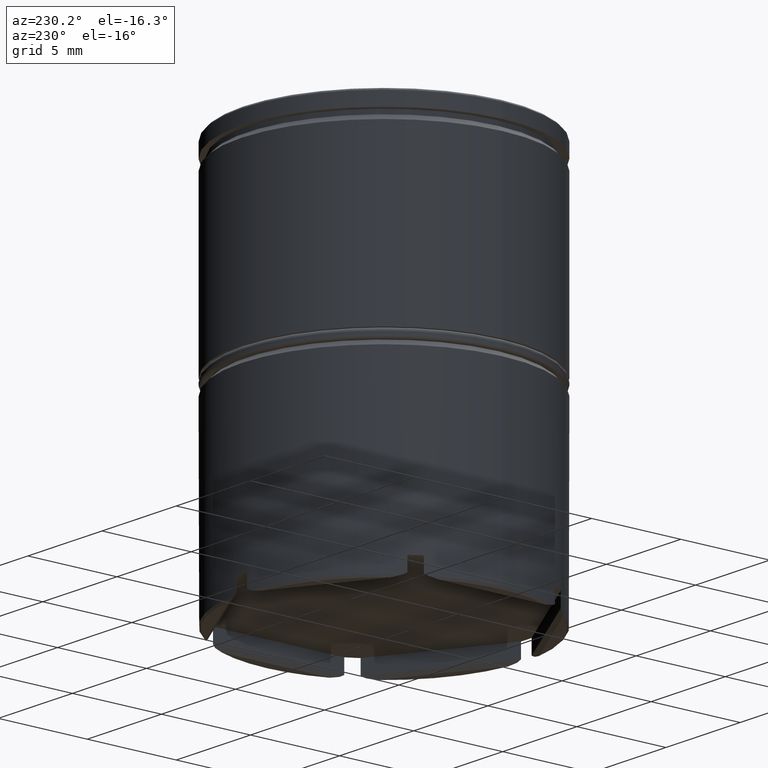
[diagram: clean part render]
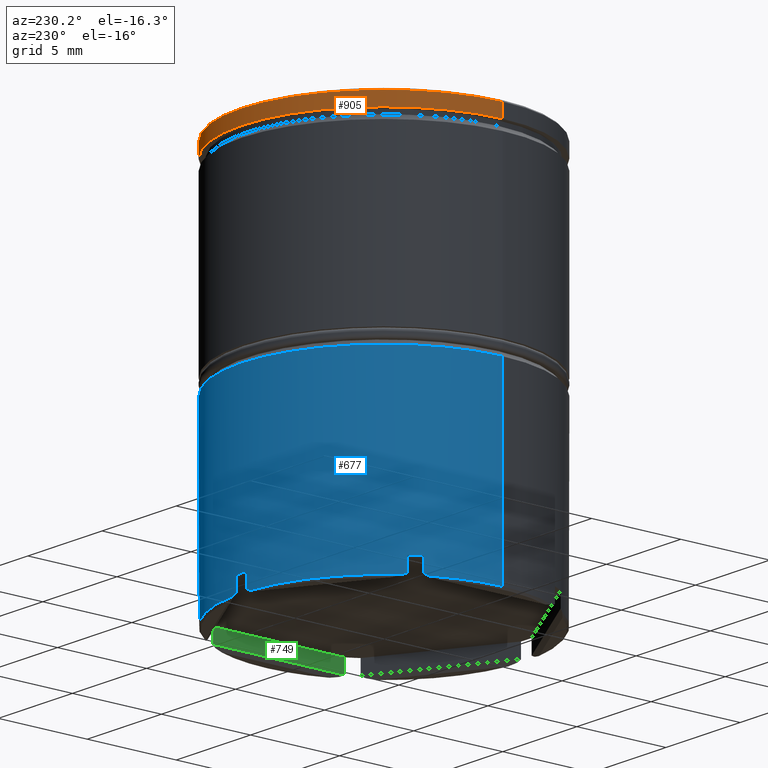
[diagram: same view with three faces highlighted in distinct colors, each labeled with its STEP entity id]
A machine part, auxiliary view with three faces highlighted in distinct colors.
Their STEP definitions:

[orange] entity #905 — the highlighted cylindrical surface (partial cylindrical patch) has radius 8 mm, axis along (-0, -0, 1).
#8 = DIRECTION ( 'NONE',  ( 1.000000000000000000, 0.000000000000000000, 0.000000000000000000 ) ) ;
#83 = DIRECTION ( 'NONE',  ( 1.000000000000000000, 0.000000000000000000, 0.000000000000000000 ) ) ;
#124 = DIRECTION ( 'NONE',  ( -0.000000000000000000, -0.000000000000000000, 1.000000000000000000 ) ) ;
#199 = VECTOR ( 'NONE', #1619, 1000.000000000000000 ) ;
#269 = AXIS2_PLACEMENT_3D ( 'NONE', #1228, #124, #8 ) ;
#275 = VERTEX_POINT ( 'NONE', #773 ) ;
#290 = AXIS2_PLACEMENT_3D ( 'NONE', #1460, #1603, #83 ) ;
#347 = EDGE_CURVE ( 'NONE', #1199, #275, #873, .T. ) ;
#361 = EDGE_CURVE ( 'NONE', #544, #275, #1565, .T. ) ;
#470 = CARTESIAN_POINT ( 'NONE',  ( 0.000000000000000000, 0.000000000000000000, -0.09999999999999592548 ) ) ;
#526 = VECTOR ( 'NONE', #569, 1000.000000000000000 ) ;
#544 = VERTEX_POINT ( 'NONE', #1384 ) ;
#569 = DIRECTION ( 'NONE',  ( -0.000000000000000000, -0.000000000000000000, 1.000000000000000000 ) ) ;
#657 = AXIS2_PLACEMENT_3D ( 'NONE', #470, #1087, #1591 ) ;
#773 = CARTESIAN_POINT ( 'NONE',  ( 8.000000000000000000, 0.000000000000000000, -0.09999999999999592548 ) ) ;
#873 = CIRCLE ( 'NONE', #657, 8.000000000000000000 ) ;
#905 = ADVANCED_FACE ( 'NONE', ( #1627 ), #1010, .T. ) ;
#973 = EDGE_CURVE ( 'NONE', #1605, #1199, #1117, .T. ) ;
#1010 = CYLINDRICAL_SURFACE ( 'NONE', #269, 8.000000000000000000 ) ;
#1073 = ORIENTED_EDGE ( 'NONE', *, *, #973, .T. ) ;
#1074 = ORIENTED_EDGE ( 'NONE', *, *, #361, .F. ) ;
#1079 = CARTESIAN_POINT ( 'NONE',  ( -8.000000000000000000, 9.797174393178825657E-16, -0.8749999999999998890 ) ) ;
#1087 = DIRECTION ( 'NONE',  ( 0.000000000000000000, 0.000000000000000000, -1.000000000000000000 ) ) ;
#1117 = LINE ( 'NONE', #1509, #199 ) ;
#1166 = EDGE_LOOP ( 'NONE', ( #1196, #1073, #1520, #1074 ) ) ;
#1196 = ORIENTED_EDGE ( 'NONE', *, *, #1205, .T. ) ;
#1199 = VERTEX_POINT ( 'NONE', #1440 ) ;
#1205 = EDGE_CURVE ( 'NONE', #544, #1605, #1285, .T. ) ;
#1228 = CARTESIAN_POINT ( 'NONE',  ( 0.000000000000000000, 0.000000000000000000, 0.000000000000000000 ) ) ;
#1285 = CIRCLE ( 'NONE', #290, 8.000000000000000000 ) ;
#1318 = CARTESIAN_POINT ( 'NONE',  ( 8.000000000000000000, 0.000000000000000000, 0.000000000000000000 ) ) ;
#1384 = CARTESIAN_POINT ( 'NONE',  ( 8.000000000000000000, 0.000000000000000000, -0.8749999999999998890 ) ) ;
#1440 = CARTESIAN_POINT ( 'NONE',  ( -8.000000000000000000, 9.797174393178825657E-16, -0.09999999999999592548 ) ) ;
#1460 = CARTESIAN_POINT ( 'NONE',  ( 0.000000000000000000, 0.000000000000000000, -0.8749999999999998890 ) ) ;
#1509 = CARTESIAN_POINT ( 'NONE',  ( -8.000000000000000000, 9.797174393178825657E-16, 0.000000000000000000 ) ) ;
#1520 = ORIENTED_EDGE ( 'NONE', *, *, #347, .T. ) ;
#1565 = LINE ( 'NONE', #1318, #526 ) ;
#1591 = DIRECTION ( 'NONE',  ( 1.000000000000000000, 0.000000000000000000, 0.000000000000000000 ) ) ;
#1603 = DIRECTION ( 'NONE',  ( -0.000000000000000000, -0.000000000000000000, 1.000000000000000000 ) ) ;
#1605 = VERTEX_POINT ( 'NONE', #1079 ) ;
#1619 = DIRECTION ( 'NONE',  ( -0.000000000000000000, -0.000000000000000000, 1.000000000000000000 ) ) ;
#1627 = FACE_OUTER_BOUND ( 'NONE', #1166, .T. ) ;

[blue] entity #677 — the highlighted cylindrical surface (partial cylindrical patch) has radius 8 mm, axis along (-0, -0, 1).
#15 = CARTESIAN_POINT ( 'NONE',  ( -0.5800662258917000935, 7.978942484664226065, -21.90000000000000213 ) ) ;
#31 = DIRECTION ( 'NONE',  ( -1.000000000000000000, 0.000000000000000000, 0.000000000000000000 ) ) ;
#33 = EDGE_CURVE ( 'NONE', #574, #1305, #1259, .T. ) ;
#34 = VERTEX_POINT ( 'NONE', #1007 ) ;
#44 = ORIENTED_EDGE ( 'NONE', *, *, #307, .T. ) ;
#59 = AXIS2_PLACEMENT_3D ( 'NONE', #1474, #1593, #830 ) ;
#72 = CARTESIAN_POINT ( 'NONE',  ( -6.742569498068907485, 4.305549507752846061, -20.99999999999999645 ) ) ;
#74 = DIRECTION ( 'NONE',  ( -0.000000000000000000, -0.000000000000000000, 1.000000000000000000 ) ) ;
#89 = AXIS2_PLACEMENT_3D ( 'NONE', #712, #74, #963 ) ;
#92 = EDGE_CURVE ( 'NONE', #798, #836, #245, .T. ) ;
#93 = CARTESIAN_POINT ( 'NONE',  ( 0.3574305019310944909, 7.992011225986190404, -20.99999999999999645 ) ) ;
#105 = EDGE_CURVE ( 'NONE', #376, #1127, #392, .T. ) ;
#108 =( BOUNDED_CURVE ( )  B_SPLINE_CURVE ( 3, ( #1141, #1242, #860, #603 ),
 .UNSPECIFIED., .F., .T. ) 
 B_SPLINE_CURVE_WITH_KNOTS ( ( 4, 4 ),
 ( 2.662687568714984465, 2.690565841793532975 ),
 .UNSPECIFIED. ) 
 CURVE ( )  GEOMETRIC_REPRESENTATION_ITEM ( )  RATIONAL_B_SPLINE_CURVE ( ( 1.000000000000000000, 0.9999352345395148278, 0.9999352345395148278, 1.000000000000000000 ) ) 
 REPRESENTATION_ITEM ( '' )  );
#125 = ORIENTED_EDGE ( 'NONE', *, *, #339, .T. ) ;
#127 = CARTESIAN_POINT ( 'NONE',  ( -0.3574305019310927700, 7.992011225986188627, -20.99999999999999645 ) ) ;
#129 = CARTESIAN_POINT ( 'NONE',  ( -6.742569498068905709, 4.305549507752851390, 0.000000000000000000 ) ) ;
#147 = CARTESIAN_POINT ( 'NONE',  ( -0.3574305019310984322, 7.992011225986190404, -21.80000000000000782 ) ) ;
#149 = DIRECTION ( 'NONE',  ( -0.000000000000000000, -0.000000000000000000, 1.000000000000000000 ) ) ;
#172 =( BOUNDED_CURVE ( )  B_SPLINE_CURVE ( 3, ( #814, #411, #559, #669 ),
 .UNSPECIFIED., .F., .T. ) 
 B_SPLINE_CURVE_WITH_KNOTS ( ( 4, 4 ),
 ( 3.592619465386055033, 3.620497738464601323 ),
 .UNSPECIFIED. ) 
 CURVE ( )  GEOMETRIC_REPRESENTATION_ITEM ( )  RATIONAL_B_SPLINE_CURVE ( ( 1.000000000000000000, 0.9999352345395148278, 0.9999352345395148278, 1.000000000000000000 ) ) 
 REPRESENTATION_ITEM ( '' )  );
#185 = CARTESIAN_POINT ( 'NONE',  ( -7.100000000000005862, 3.686461718233341678, -21.80000000000000782 ) ) ;
#192 = VERTEX_POINT ( 'NONE', #254 ) ;
#193 = AXIS2_PLACEMENT_3D ( 'NONE', #1420, #771, #556 ) ;
#194 = VECTOR ( 'NONE', #346, 1000.000000000000000 ) ;
#215 = VERTEX_POINT ( 'NONE', #369 ) ;
#223 = VERTEX_POINT ( 'NONE', #1240 ) ;
#234 = DIRECTION ( 'NONE',  ( -0.000000000000000000, -0.000000000000000000, 1.000000000000000000 ) ) ;
#245 = CIRCLE ( 'NONE', #1371, 8.000000000000000000 ) ;
#254 = CARTESIAN_POINT ( 'NONE',  ( -0.5800662258917000935, 7.978942484664226065, -21.90000000000000213 ) ) ;
#256 = CARTESIAN_POINT ( 'NONE',  ( -6.742569498068905709, 4.305549507752851390, -21.80000000000000782 ) ) ;
#263 = EDGE_CURVE ( 'NONE', #861, #1011, #1210, .T. ) ;
#278 = CARTESIAN_POINT ( 'NONE',  ( -7.200000000000001066, 3.487119154832536871, -21.90000000000000213 ) ) ;
#297 = ORIENTED_EDGE ( 'NONE', *, *, #1372, .T. ) ;
#307 = EDGE_CURVE ( 'NONE', #721, #1098, #1375, .T. ) ;
#333 = ORIENTED_EDGE ( 'NONE', *, *, #964, .F. ) ;
#339 = EDGE_CURVE ( 'NONE', #1098, #1118, #1342, .T. ) ;
#340 = EDGE_LOOP ( 'NONE', ( #125, #684, #342, #467, #1529, #344, #1250, #636, #1477, #934, #404, #297, #333, #440, #1553, #1602, #1084, #1150, #977, #1466, #757, #44 ) ) ;
#341 = CARTESIAN_POINT ( 'NONE',  ( -7.100000000000005862, 3.686461718233341678, 0.000000000000000000 ) ) ;
#342 = ORIENTED_EDGE ( 'NONE', *, *, #931, .T. ) ;
#344 = ORIENTED_EDGE ( 'NONE', *, *, #1070, .T. ) ;
#346 = DIRECTION ( 'NONE',  ( -0.000000000000000000, -0.000000000000000000, 1.000000000000000000 ) ) ;
#352 = DIRECTION ( 'NONE',  ( -1.000000000000000000, -1.776356839400250465E-15, 0.000000000000000000 ) ) ;
#355 = VERTEX_POINT ( 'NONE', #93 ) ;
#357 = CARTESIAN_POINT ( 'NONE',  ( -8.000000000000000000, 9.797174393178825657E-16, -11.54999999999999893 ) ) ;
#365 = CARTESIAN_POINT ( 'NONE',  ( 0.4317007308678149080, 7.988689603373718917, -21.83425850490418441 ) ) ;
#369 = CARTESIAN_POINT ( 'NONE',  ( 7.100000000000005862, 3.686461718233341678, -21.80000000000000782 ) ) ;
#376 = VERTEX_POINT ( 'NONE', #1069 ) ;
#392 = CIRCLE ( 'NONE', #1023, 8.000000000000000000 ) ;
#404 = ORIENTED_EDGE ( 'NONE', *, *, #105, .T. ) ;
#406 = CARTESIAN_POINT ( 'NONE',  ( -8.000000000000000000, 9.797174393178825657E-16, -21.90000000000000213 ) ) ;
#411 = CARTESIAN_POINT ( 'NONE',  ( -6.661676551691632753, 4.430303897107394029, -21.86759399722601671 ) ) ;
#430 = DIRECTION ( 'NONE',  ( -1.000000000000000000, 3.552713678800500929E-15, 0.000000000000000000 ) ) ;
#440 = ORIENTED_EDGE ( 'NONE', *, *, #1267, .T. ) ;
#445 = VERTEX_POINT ( 'NONE', #1345 ) ;
#463 = VERTEX_POINT ( 'NONE', #1116 ) ;
#467 = ORIENTED_EDGE ( 'NONE', *, *, #945, .F. ) ;
#482 = CARTESIAN_POINT ( 'NONE',  ( 0.000000000000000000, 0.000000000000000000, -21.90000000000000213 ) ) ;
#483 = CIRCLE ( 'NONE', #1401, 8.000000000000000000 ) ;
#486 = CARTESIAN_POINT ( 'NONE',  ( 8.000000000000000000, 0.000000000000000000, 0.000000000000000000 ) ) ;
#496 = LINE ( 'NONE', #862, #1211 ) ;
#517 = EDGE_CURVE ( 'NONE', #223, #571, #882, .T. ) ;
#531 = CARTESIAN_POINT ( 'NONE',  ( -7.167593997226017422, 3.554029177006380991, -21.86759399722601671 ) ) ;
#538 = DIRECTION ( 'NONE',  ( -0.000000000000000000, -0.000000000000000000, 1.000000000000000000 ) ) ;
#556 = DIRECTION ( 'NONE',  ( -1.000000000000000000, -1.776356839400250465E-15, 0.000000000000000000 ) ) ;
#559 = CARTESIAN_POINT ( 'NONE',  ( -6.702557774036359994, 4.368208601450696449, -21.83425850490418441 ) ) ;
#571 = VERTEX_POINT ( 'NONE', #127 ) ;
#574 = VERTEX_POINT ( 'NONE', #751 ) ;
#601 = EDGE_CURVE ( 'NONE', #463, #1433, #172, .T. ) ;
#603 = CARTESIAN_POINT ( 'NONE',  ( 6.619933774108291757, 4.491823329831700740, -21.90000000000000213 ) ) ;
#627 = LINE ( 'NONE', #1111, #1479 ) ;
#636 = ORIENTED_EDGE ( 'NONE', *, *, #1486, .T. ) ;
#641 = CARTESIAN_POINT ( 'NONE',  ( -7.200000000000001066, 3.487119154832536871, -21.90000000000000213 ) ) ;
#645 = LINE ( 'NONE', #1274, #1136 ) ;
#649 = CARTESIAN_POINT ( 'NONE',  ( 8.000000000000000000, 0.000000000000000000, -11.54999999999999893 ) ) ;
#669 = CARTESIAN_POINT ( 'NONE',  ( -6.742569498068905709, 4.305549507752851390, -21.80000000000000782 ) ) ;
#677 = ADVANCED_FACE ( 'NONE', ( #686 ), #923, .T. ) ;
#684 = ORIENTED_EDGE ( 'NONE', *, *, #1020, .T. ) ;
#686 = FACE_OUTER_BOUND ( 'NONE', #340, .T. ) ;
#712 = CARTESIAN_POINT ( 'NONE',  ( 0.000000000000000000, 0.000000000000000000, -21.90000000000000213 ) ) ;
#721 = VERTEX_POINT ( 'NONE', #185 ) ;
#751 = CARTESIAN_POINT ( 'NONE',  ( 8.000000000000000000, 0.000000000000000000, -21.90000000000000213 ) ) ;
#757 = ORIENTED_EDGE ( 'NONE', *, *, #1282, .F. ) ;
#771 = DIRECTION ( 'NONE',  ( -0.000000000000000000, -0.000000000000000000, 1.000000000000000000 ) ) ;
#798 = VERTEX_POINT ( 'NONE', #72 ) ;
#814 = CARTESIAN_POINT ( 'NONE',  ( -6.619933774108297975, 4.491823329831691858, -21.90000000000000213 ) ) ;
#818 = CIRCLE ( 'NONE', #892, 8.000000000000000000 ) ;
#824 = VECTOR ( 'NONE', #1491, 1000.000000000000000 ) ;
#830 = DIRECTION ( 'NONE',  ( -1.000000000000000000, 1.154631945610162960E-14, 0.000000000000000000 ) ) ;
#836 = VERTEX_POINT ( 'NONE', #1382 ) ;
#839 =( BOUNDED_CURVE ( )  B_SPLINE_CURVE ( 3, ( #940, #1406, #920, #901 ),
 .UNSPECIFIED., .F., .T. ) 
 B_SPLINE_CURVE_WITH_KNOTS ( ( 4, 4 ),
 ( 3.592619465386055477, 3.620497738464601767 ),
 .UNSPECIFIED. ) 
 CURVE ( )  GEOMETRIC_REPRESENTATION_ITEM ( )  RATIONAL_B_SPLINE_CURVE ( ( 1.000000000000000000, 0.9999352345395148278, 0.9999352345395148278, 1.000000000000000000 ) ) 
 REPRESENTATION_ITEM ( '' )  );
#842 = LINE ( 'NONE', #341, #982 ) ;
#847 = AXIS2_PLACEMENT_3D ( 'NONE', #937, #538, #1443 ) ;
#860 = CARTESIAN_POINT ( 'NONE',  ( 6.661676551691631865, 4.430303897107399358, -21.86759399722602382 ) ) ;
#861 = VERTEX_POINT ( 'NONE', #1015 ) ;
#862 = CARTESIAN_POINT ( 'NONE',  ( 0.3574305019310944909, 7.992011225986190404, 0.000000000000000000 ) ) ;
#868 = CARTESIAN_POINT ( 'NONE',  ( 0.3574305019310944909, 7.992011225986190404, -21.80000000000000071 ) ) ;
#882 = LINE ( 'NONE', #1005, #1287 ) ;
#890 = EDGE_CURVE ( 'NONE', #445, #215, #627, .T. ) ;
#891 = DIRECTION ( 'NONE',  ( 0.000000000000000000, 0.000000000000000000, -1.000000000000000000 ) ) ;
#892 = AXIS2_PLACEMENT_3D ( 'NONE', #1543, #1179, #31 ) ;
#901 = CARTESIAN_POINT ( 'NONE',  ( 7.100000000000005862, 3.686461718233341678, -21.80000000000000782 ) ) ;
#907 = CARTESIAN_POINT ( 'NONE',  ( 0.000000000000000000, 0.000000000000000000, -20.99999999999999645 ) ) ;
#910 = CARTESIAN_POINT ( 'NONE',  ( 0.5800662258917101965, 7.978942484664227841, -21.90000000000000213 ) ) ;
#920 = CARTESIAN_POINT ( 'NONE',  ( 7.134258504904175346, 3.620481001923024689, -21.83425850490418085 ) ) ;
#922 = CARTESIAN_POINT ( 'NONE',  ( -7.100000000000005862, 3.686461718233341678, -21.80000000000000782 ) ) ;
#923 = CYLINDRICAL_SURFACE ( 'NONE', #847, 8.000000000000000000 ) ;
#931 = EDGE_CURVE ( 'NONE', #1400, #1046, #483, .T. ) ;
#934 = ORIENTED_EDGE ( 'NONE', *, *, #1347, .T. ) ;
#937 = CARTESIAN_POINT ( 'NONE',  ( 0.000000000000000000, 0.000000000000000000, 0.000000000000000000 ) ) ;
#940 = CARTESIAN_POINT ( 'NONE',  ( 7.200000000000000178, 3.487119154832540424, -21.90000000000000213 ) ) ;
#945 = EDGE_CURVE ( 'NONE', #574, #1046, #1614, .T. ) ;
#963 = DIRECTION ( 'NONE',  ( -1.000000000000000000, 2.664535259100375697E-15, 0.000000000000000000 ) ) ;
#964 = EDGE_CURVE ( 'NONE', #355, #34, #496, .T. ) ;
#975 = DIRECTION ( 'NONE',  ( -0.000000000000000000, -0.000000000000000000, 1.000000000000000000 ) ) ;
#977 = ORIENTED_EDGE ( 'NONE', *, *, #1380, .F. ) ;
#982 = VECTOR ( 'NONE', #975, 1000.000000000000000 ) ;
#988 = DIRECTION ( 'NONE',  ( -1.000000000000000000, 0.000000000000000000, 0.000000000000000000 ) ) ;
#1000 = CIRCLE ( 'NONE', #193, 8.000000000000000000 ) ;
#1002 = DIRECTION ( 'NONE',  ( 1.000000000000000000, 0.000000000000000000, 0.000000000000000000 ) ) ;
#1005 = CARTESIAN_POINT ( 'NONE',  ( -0.3574305019310984322, 7.992011225986190404, 0.000000000000000000 ) ) ;
#1007 = CARTESIAN_POINT ( 'NONE',  ( 0.3574305019310944909, 7.992011225986190404, -21.80000000000000071 ) ) ;
#1009 =( BOUNDED_CURVE ( )  B_SPLINE_CURVE ( 3, ( #147, #1147, #1169, #15 ),
 .UNSPECIFIED., .F., .T. ) 
 B_SPLINE_CURVE_WITH_KNOTS ( ( 4, 4 ),
 ( 2.662687568714985353, 2.690565841793531199 ),
 .UNSPECIFIED. ) 
 CURVE ( )  GEOMETRIC_REPRESENTATION_ITEM ( )  RATIONAL_B_SPLINE_CURVE ( ( 1.000000000000000000, 0.9999352345395148278, 0.9999352345395148278, 1.000000000000000000 ) ) 
 REPRESENTATION_ITEM ( '' )  );
#1011 = VERTEX_POINT ( 'NONE', #1180 ) ;
#1015 = CARTESIAN_POINT ( 'NONE',  ( 6.742569498068909262, 4.305549507752845173, -21.80000000000000071 ) ) ;
#1020 = EDGE_CURVE ( 'NONE', #1118, #1400, #645, .T. ) ;
#1021 = DIRECTION ( 'NONE',  ( -0.000000000000000000, -0.000000000000000000, 1.000000000000000000 ) ) ;
#1023 = AXIS2_PLACEMENT_3D ( 'NONE', #482, #234, #352 ) ;
#1046 = VERTEX_POINT ( 'NONE', #649 ) ;
#1055 = DIRECTION ( 'NONE',  ( -0.000000000000000000, -0.000000000000000000, 1.000000000000000000 ) ) ;
#1069 = CARTESIAN_POINT ( 'NONE',  ( 6.619933774108291757, 4.491823329831700740, -21.90000000000000213 ) ) ;
#1070 = EDGE_CURVE ( 'NONE', #1305, #215, #839, .T. ) ;
#1075 = EDGE_CURVE ( 'NONE', #192, #463, #1000, .T. ) ;
#1084 = ORIENTED_EDGE ( 'NONE', *, *, #1075, .T. ) ;
#1089 = EDGE_CURVE ( 'NONE', #223, #192, #1009, .T. ) ;
#1098 = VERTEX_POINT ( 'NONE', #278 ) ;
#1111 = CARTESIAN_POINT ( 'NONE',  ( 7.100000000000005862, 3.686461718233341678, 0.000000000000000000 ) ) ;
#1116 = CARTESIAN_POINT ( 'NONE',  ( -6.619933774108297975, 4.491823329831691858, -21.90000000000000213 ) ) ;
#1118 = VERTEX_POINT ( 'NONE', #406 ) ;
#1124 =( BOUNDED_CURVE ( )  B_SPLINE_CURVE ( 3, ( #1353, #1251, #365, #868 ),
 .UNSPECIFIED., .F., .T. ) 
 B_SPLINE_CURVE_WITH_KNOTS ( ( 4, 4 ),
 ( 3.592619465386054145, 3.620497738464602211 ),
 .UNSPECIFIED. ) 
 CURVE ( )  GEOMETRIC_REPRESENTATION_ITEM ( )  RATIONAL_B_SPLINE_CURVE ( ( 1.000000000000000000, 0.9999352345395148278, 0.9999352345395148278, 1.000000000000000000 ) ) 
 REPRESENTATION_ITEM ( '' )  );
#1127 = VERTEX_POINT ( 'NONE', #910 ) ;
#1130 = DIRECTION ( 'NONE',  ( 0.000000000000000000, 0.000000000000000000, -1.000000000000000000 ) ) ;
#1132 = DIRECTION ( 'NONE',  ( 0.000000000000000000, 0.000000000000000000, -1.000000000000000000 ) ) ;
#1136 = VECTOR ( 'NONE', #1021, 1000.000000000000000 ) ;
#1141 = CARTESIAN_POINT ( 'NONE',  ( 6.742569498068909262, 4.305549507752845173, -21.80000000000000071 ) ) ;
#1147 = CARTESIAN_POINT ( 'NONE',  ( -0.4317007308678146305, 7.988689603373715364, -21.83425850490418441 ) ) ;
#1150 = ORIENTED_EDGE ( 'NONE', *, *, #601, .T. ) ;
#1169 = CARTESIAN_POINT ( 'NONE',  ( -0.5059174455343817822, 7.984333074113770579, -21.86759399722602026 ) ) ;
#1179 = DIRECTION ( 'NONE',  ( -0.000000000000000000, -0.000000000000000000, 1.000000000000000000 ) ) ;
#1180 = CARTESIAN_POINT ( 'NONE',  ( 6.742569498068909262, 4.305549507752845173, -20.99999999999999645 ) ) ;
#1210 = LINE ( 'NONE', #1226, #194 ) ;
#1211 = VECTOR ( 'NONE', #1364, 1000.000000000000000 ) ;
#1226 = CARTESIAN_POINT ( 'NONE',  ( 6.742569498068909262, 4.305549507752845173, 0.000000000000000000 ) ) ;
#1240 = CARTESIAN_POINT ( 'NONE',  ( -0.3574305019310984322, 7.992011225986190404, -21.80000000000000782 ) ) ;
#1242 = CARTESIAN_POINT ( 'NONE',  ( 6.702557774036362659, 4.368208601450695561, -21.83425850490418441 ) ) ;
#1244 = CARTESIAN_POINT ( 'NONE',  ( 0.000000000000000000, 0.000000000000000000, -11.54999999999999893 ) ) ;
#1250 = ORIENTED_EDGE ( 'NONE', *, *, #890, .F. ) ;
#1251 = CARTESIAN_POINT ( 'NONE',  ( 0.5059174455343885546, 7.984333074113772355, -21.86759399722602026 ) ) ;
#1259 = CIRCLE ( 'NONE', #1526, 8.000000000000000000 ) ;
#1267 = EDGE_CURVE ( 'NONE', #355, #571, #1370, .T. ) ;
#1270 = CARTESIAN_POINT ( 'NONE',  ( -7.134258504904176235, 3.620481001923023801, -21.83425850490418085 ) ) ;
#1274 = CARTESIAN_POINT ( 'NONE',  ( -8.000000000000000000, 9.797174393178825657E-16, 0.000000000000000000 ) ) ;
#1282 = EDGE_CURVE ( 'NONE', #721, #836, #842, .T. ) ;
#1287 = VECTOR ( 'NONE', #149, 1000.000000000000000 ) ;
#1305 = VERTEX_POINT ( 'NONE', #1387 ) ;
#1342 = CIRCLE ( 'NONE', #89, 8.000000000000000000 ) ;
#1345 = CARTESIAN_POINT ( 'NONE',  ( 7.100000000000005862, 3.686461718233341678, -20.99999999999999645 ) ) ;
#1347 = EDGE_CURVE ( 'NONE', #861, #376, #108, .T. ) ;
#1353 = CARTESIAN_POINT ( 'NONE',  ( 0.5800662258917101965, 7.978942484664227841, -21.90000000000000213 ) ) ;
#1362 = LINE ( 'NONE', #129, #1395 ) ;
#1364 = DIRECTION ( 'NONE',  ( 0.000000000000000000, 0.000000000000000000, -1.000000000000000000 ) ) ;
#1370 = CIRCLE ( 'NONE', #59, 8.000000000000000000 ) ;
#1371 = AXIS2_PLACEMENT_3D ( 'NONE', #907, #1055, #430 ) ;
#1372 = EDGE_CURVE ( 'NONE', #1127, #34, #1124, .T. ) ;
#1375 =( BOUNDED_CURVE ( )  B_SPLINE_CURVE ( 3, ( #922, #1270, #531, #641 ),
 .UNSPECIFIED., .F., .T. ) 
 B_SPLINE_CURVE_WITH_KNOTS ( ( 4, 4 ),
 ( 2.662687568714984465, 2.690565841793530755 ),
 .UNSPECIFIED. ) 
 CURVE ( )  GEOMETRIC_REPRESENTATION_ITEM ( )  RATIONAL_B_SPLINE_CURVE ( ( 1.000000000000000000, 0.9999352345395148278, 0.9999352345395148278, 1.000000000000000000 ) ) 
 REPRESENTATION_ITEM ( '' )  );
#1380 = EDGE_CURVE ( 'NONE', #798, #1433, #1362, .T. ) ;
#1382 = CARTESIAN_POINT ( 'NONE',  ( -7.100000000000005862, 3.686461718233341678, -20.99999999999999645 ) ) ;
#1387 = CARTESIAN_POINT ( 'NONE',  ( 7.200000000000000178, 3.487119154832540424, -21.90000000000000213 ) ) ;
#1395 = VECTOR ( 'NONE', #1130, 1000.000000000000000 ) ;
#1400 = VERTEX_POINT ( 'NONE', #357 ) ;
#1401 = AXIS2_PLACEMENT_3D ( 'NONE', #1244, #891, #1002 ) ;
#1406 = CARTESIAN_POINT ( 'NONE',  ( 7.167593997226018310, 3.554029177006382767, -21.86759399722601671 ) ) ;
#1420 = CARTESIAN_POINT ( 'NONE',  ( 0.000000000000000000, 0.000000000000000000, -21.90000000000000213 ) ) ;
#1433 = VERTEX_POINT ( 'NONE', #256 ) ;
#1443 = DIRECTION ( 'NONE',  ( 1.000000000000000000, 0.000000000000000000, 0.000000000000000000 ) ) ;
#1466 = ORIENTED_EDGE ( 'NONE', *, *, #92, .T. ) ;
#1474 = CARTESIAN_POINT ( 'NONE',  ( 0.000000000000000000, 0.000000000000000000, -20.99999999999999645 ) ) ;
#1477 = ORIENTED_EDGE ( 'NONE', *, *, #263, .F. ) ;
#1479 = VECTOR ( 'NONE', #1132, 1000.000000000000000 ) ;
#1486 = EDGE_CURVE ( 'NONE', #445, #1011, #818, .T. ) ;
#1491 = DIRECTION ( 'NONE',  ( -0.000000000000000000, -0.000000000000000000, 1.000000000000000000 ) ) ;
#1495 = CARTESIAN_POINT ( 'NONE',  ( 0.000000000000000000, 0.000000000000000000, -21.90000000000000213 ) ) ;
#1526 = AXIS2_PLACEMENT_3D ( 'NONE', #1495, #1608, #988 ) ;
#1529 = ORIENTED_EDGE ( 'NONE', *, *, #33, .T. ) ;
#1543 = CARTESIAN_POINT ( 'NONE',  ( 0.000000000000000000, 0.000000000000000000, -20.99999999999999645 ) ) ;
#1553 = ORIENTED_EDGE ( 'NONE', *, *, #517, .F. ) ;
#1593 = DIRECTION ( 'NONE',  ( -0.000000000000000000, -0.000000000000000000, 1.000000000000000000 ) ) ;
#1602 = ORIENTED_EDGE ( 'NONE', *, *, #1089, .T. ) ;
#1608 = DIRECTION ( 'NONE',  ( -0.000000000000000000, -0.000000000000000000, 1.000000000000000000 ) ) ;
#1614 = LINE ( 'NONE', #486, #824 ) ;

[green] entity #749 — the highlighted planar face has unit normal (1, 0, -0).
#55 = ORIENTED_EDGE ( 'NONE', *, *, #68, .T. ) ;
#56 = AXIS2_PLACEMENT_3D ( 'NONE', #1219, #462, #1337 ) ;
#68 = EDGE_CURVE ( 'NONE', #215, #547, #1437, .T. ) ;
#88 = VECTOR ( 'NONE', #97, 1000.000000000000000 ) ;
#97 = DIRECTION ( 'NONE',  ( 1.057968027279689044E-16, -1.000000000000000000, 0.000000000000000000 ) ) ;
#106 = CARTESIAN_POINT ( 'NONE',  ( 7.100000000000005862, -3.686461718233339901, -20.99999999999999645 ) ) ;
#146 = DIRECTION ( 'NONE',  ( -0.000000000000000000, -0.000000000000000000, 1.000000000000000000 ) ) ;
#153 = ORIENTED_EDGE ( 'NONE', *, *, #1473, .T. ) ;
#177 = ORIENTED_EDGE ( 'NONE', *, *, #890, .T. ) ;
#187 = EDGE_CURVE ( 'NONE', #445, #1312, #1623, .T. ) ;
#215 = VERTEX_POINT ( 'NONE', #369 ) ;
#216 = FACE_OUTER_BOUND ( 'NONE', #1498, .T. ) ;
#291 = LINE ( 'NONE', #1268, #629 ) ;
#369 = CARTESIAN_POINT ( 'NONE',  ( 7.100000000000005862, 3.686461718233341678, -21.80000000000000782 ) ) ;
#445 = VERTEX_POINT ( 'NONE', #1345 ) ;
#455 = PLANE ( 'NONE',  #56 ) ;
#462 = DIRECTION ( 'NONE',  ( 1.000000000000000000, 1.057968027279689044E-16, -0.000000000000000000 ) ) ;
#547 = VERTEX_POINT ( 'NONE', #1629 ) ;
#627 = LINE ( 'NONE', #1111, #1479 ) ;
#629 = VECTOR ( 'NONE', #146, 1000.000000000000000 ) ;
#749 = ADVANCED_FACE ( 'NONE', ( #216 ), #455, .F. ) ;
#768 = CARTESIAN_POINT ( 'NONE',  ( 7.100000000000006750, -3.464101615137754830, -21.80000000000000782 ) ) ;
#807 = ORIENTED_EDGE ( 'NONE', *, *, #187, .F. ) ;
#890 = EDGE_CURVE ( 'NONE', #445, #215, #627, .T. ) ;
#927 = DIRECTION ( 'NONE',  ( 1.057968027279689044E-16, -1.000000000000000000, 0.000000000000000000 ) ) ;
#1111 = CARTESIAN_POINT ( 'NONE',  ( 7.100000000000005862, 3.686461718233341678, 0.000000000000000000 ) ) ;
#1114 = CARTESIAN_POINT ( 'NONE',  ( 7.100000000000005862, 4.099186911246344600, -20.99999999999999645 ) ) ;
#1132 = DIRECTION ( 'NONE',  ( 0.000000000000000000, 0.000000000000000000, -1.000000000000000000 ) ) ;
#1219 = CARTESIAN_POINT ( 'NONE',  ( 7.100000000000005862, 4.099186911246344600, -20.99999999999999645 ) ) ;
#1268 = CARTESIAN_POINT ( 'NONE',  ( 7.100000000000005862, -3.686461718233339901, 0.000000000000000000 ) ) ;
#1312 = VERTEX_POINT ( 'NONE', #106 ) ;
#1337 = DIRECTION ( 'NONE',  ( -1.057968027279689044E-16, 1.000000000000000000, 0.000000000000000000 ) ) ;
#1345 = CARTESIAN_POINT ( 'NONE',  ( 7.100000000000005862, 3.686461718233341678, -20.99999999999999645 ) ) ;
#1374 = VECTOR ( 'NONE', #927, 1000.000000000000000 ) ;
#1437 = LINE ( 'NONE', #768, #1374 ) ;
#1473 = EDGE_CURVE ( 'NONE', #547, #1312, #291, .T. ) ;
#1479 = VECTOR ( 'NONE', #1132, 1000.000000000000000 ) ;
#1498 = EDGE_LOOP ( 'NONE', ( #177, #55, #153, #807 ) ) ;
#1623 = LINE ( 'NONE', #1114, #88 ) ;
#1629 = CARTESIAN_POINT ( 'NONE',  ( 7.100000000000005862, -3.686461718233339901, -21.80000000000000782 ) ) ;